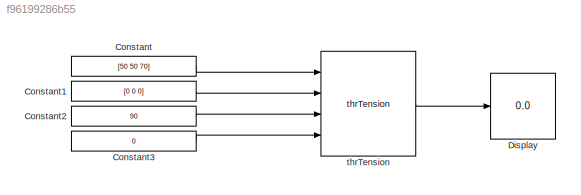
MODEL slx_f96199286b55
KIND model
CONFIG AbsTol = auto
CONFIG EnableMultiTasking = off
CONFIG FixedStep = auto
CONFIG MaxStep = auto
CONFIG MinStep = auto
CONFIG RelTol = 1e-3
CONFIG SampleTimeConstraint = Unconstrained
CONFIG Solver = VariableStepAuto
CONFIG SolverName = VariableStepAuto
CONFIG StartTime = 0.0
CONFIG StopTime = 1
BLOCK [Constant] Constant
  Value = [50 50 70]
BLOCK [Constant] Constant1
  Value = [0 0 0]
BLOCK [Constant] Constant2
  Value = 90
BLOCK [Constant] Constant3
  Value = 0
BLOCK [Display] Display
  Decimation = 1
  Ports = [1]
BLOCK [Reference] thrTension  REF=calcThrTension_ul/thrTension
  Ports = [4, 1]
  SourceBlock = calcThrTension_ul/thrTension
LINE Constant1:1 -> thrTension:2
LINE Constant2:1 -> thrTension:3
LINE Constant3:1 -> thrTension:4
LINE Constant:1 -> thrTension:1
LINE thrTension:1 -> Display:1
